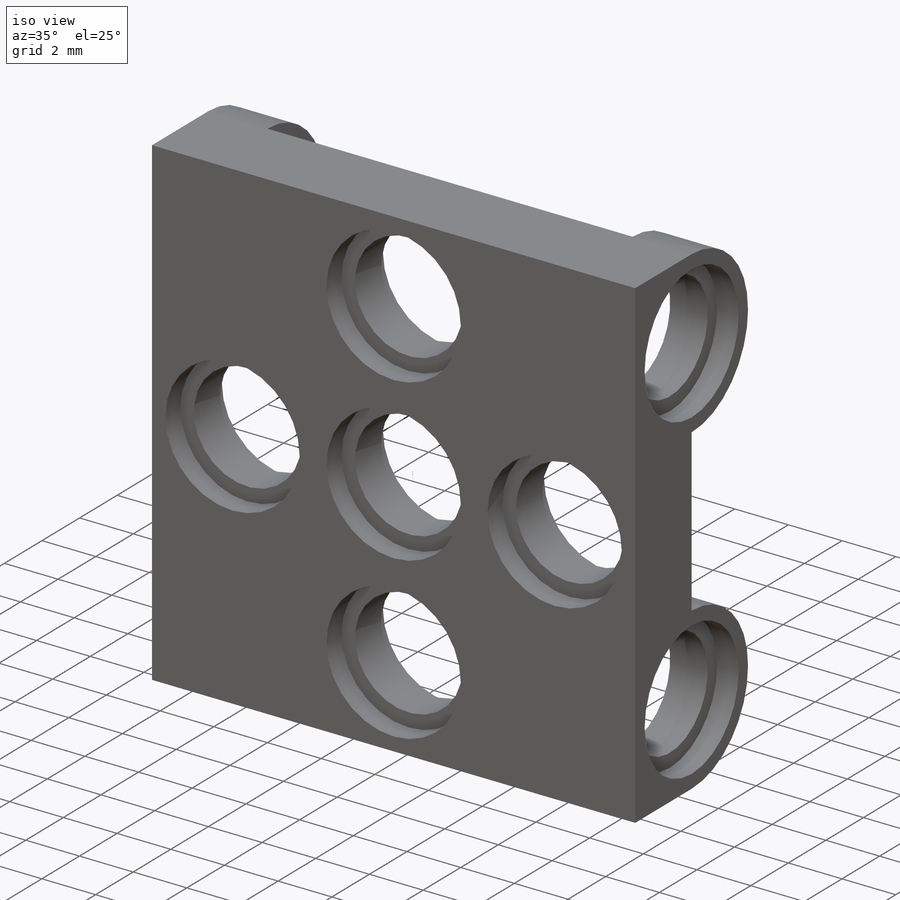
[diagram: iso view]
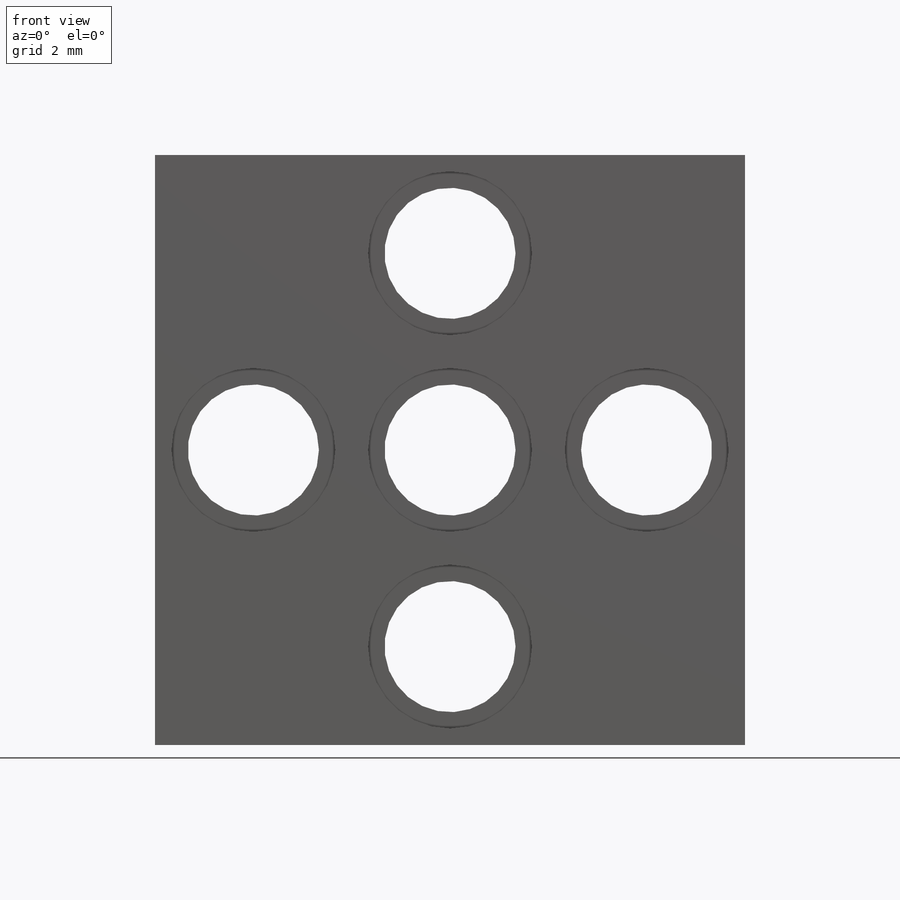
[diagram: front view]
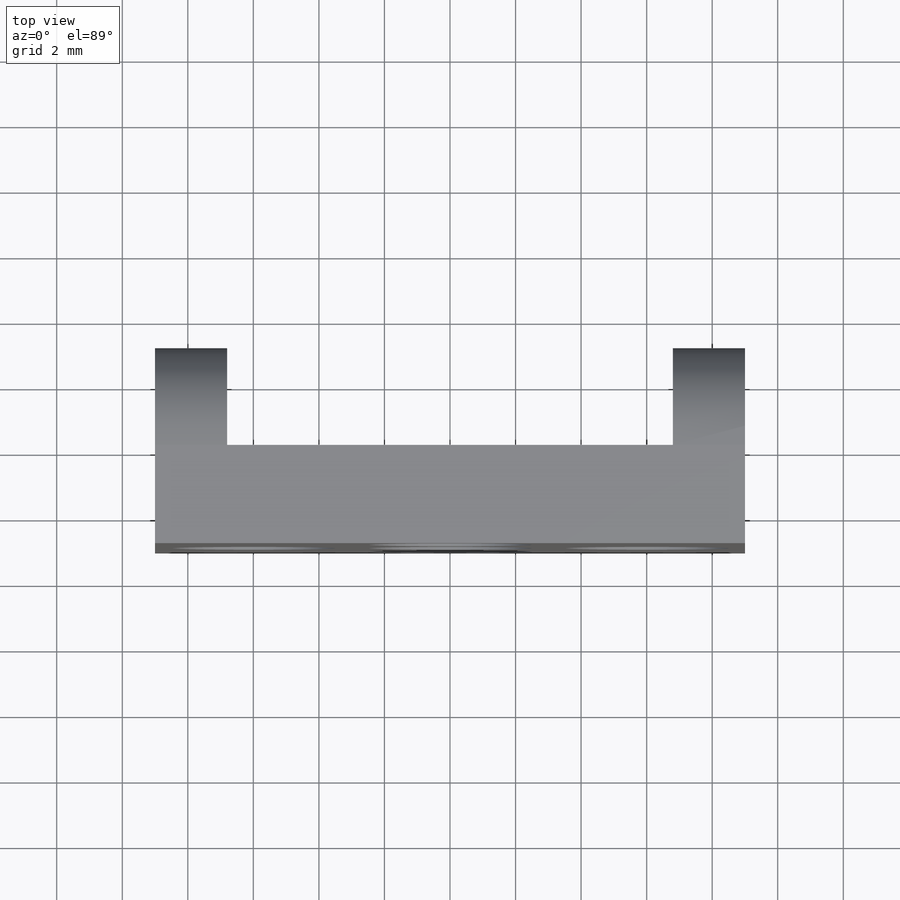
[diagram: top view]
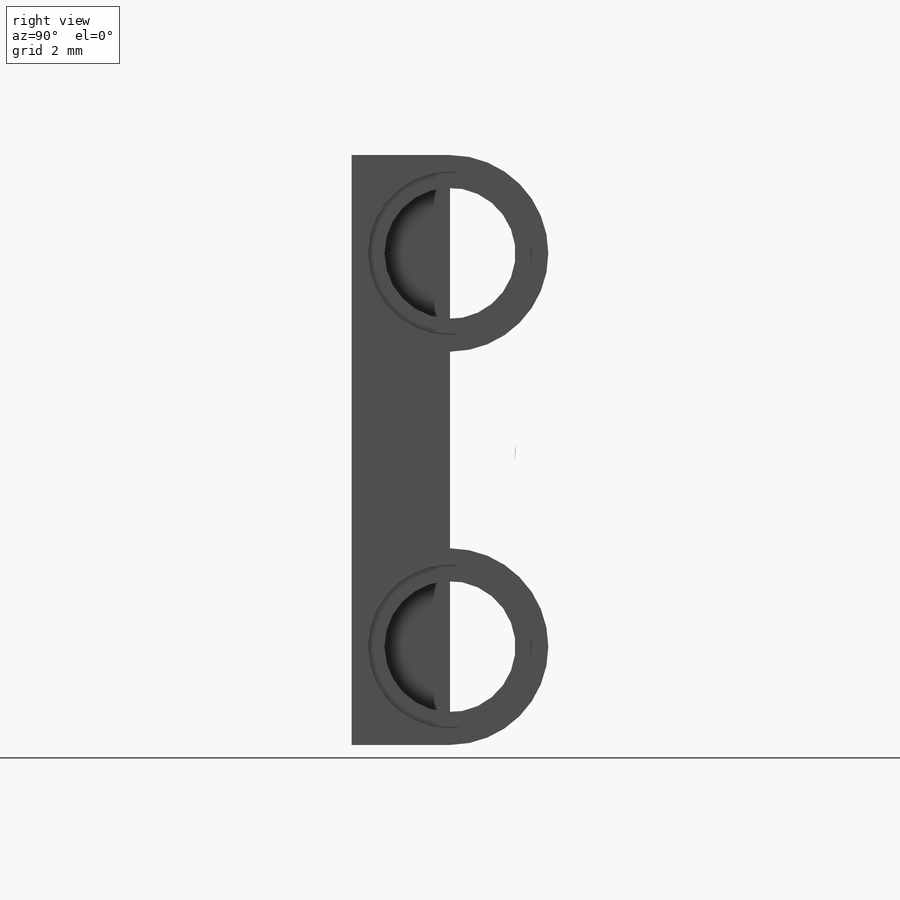
[diagram: right view]
SOLIDWORKS PART (.sldprt)
format: sldprt  version: not decoded by parser v0  size: 345,088 bytes
history: native  units: mm
features: sketch x8, extrude x2, hole x2, cut_extrude x2, mirror x2, material x1 (+12 scaffold rows collapsed)
feature tree (29):
  scaffold x12  (default folders/planes/origin — collapsed)
  material  "ABS"
  sketch  "Sketch1"  dims[D1=9.0mm]
  extrude  "Boss-Extrude1"  Depth=3mm
  hole  "Hole1"  Diameter=4mm Depth=3mm
  sketch  "Sketch3"  dims[c1.D1=6.0mm c1.D2=6.0mm c2.D1=6.0mm c2.D2=6.0mm]
  sketch  "Sketch2"  dims[Diameter=4.0mm Depth=3.0mm C-Bore Diameter=5.0mm C-Bore Depth=0.8mm]
  sketch  "Sketch4"  dims[D1=6.0mm]
  extrude  "Boss-Extrude3"  Depth=2.2mm
  hole  "Hole2"  Diameter=4mm Depth=2.2mm
  sketch  "Sketch6"
  sketch  "Sketch5"  dims[Diameter=4.0mm Depth=2.2mm C-Bore Diameter=5.0mm C-Bore Depth=0.8mm]
  sketch  "Sketch7"
  cut_extrude  "Cut-Extrude1"  Depth=0.8mm
  sketch  "Sketch8"
  cut_extrude  "Cut-Extrude2"  Depth=0.8mm
  mirror  "Mirror1"
  mirror  "Mirror2"
decode coverage: 11 of 16 modeling features carry decoded parameters
note: suppression state not decoded; provenance and decode notes live in map.json
